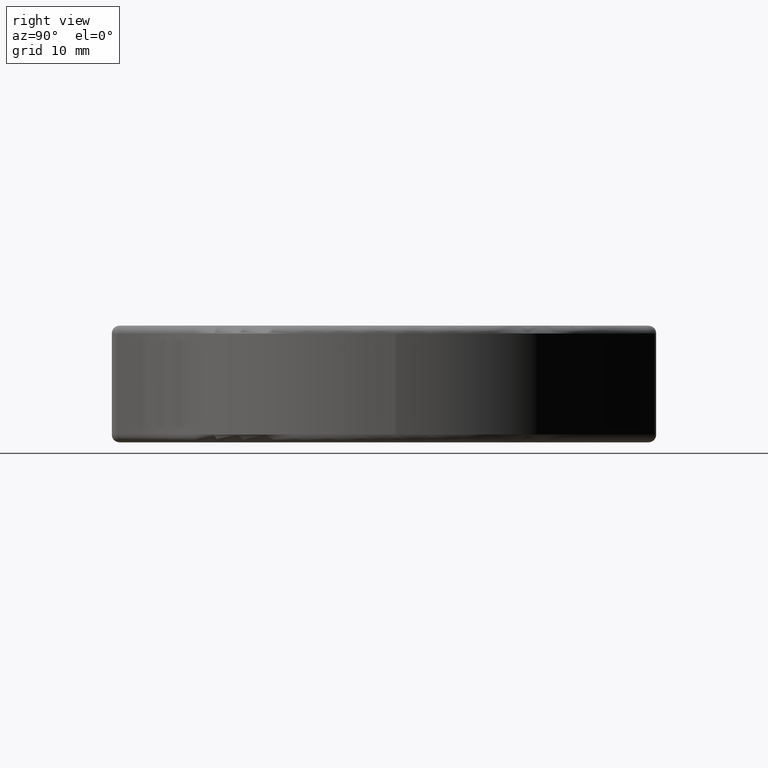
[diagram: clean part render]
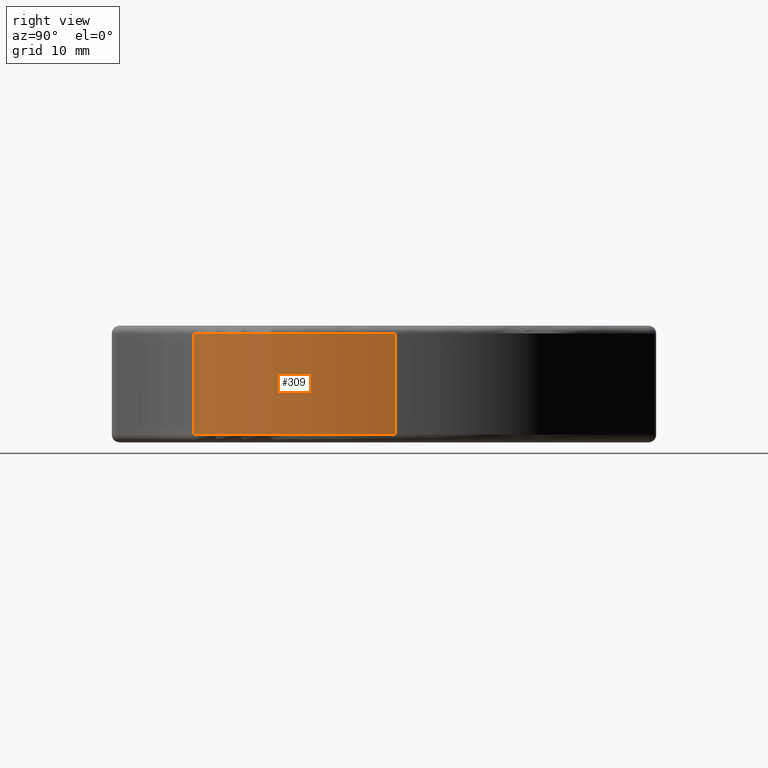
[diagram: same view with one face highlighted and labeled with its STEP entity id]
A machine part, right view. The second image highlights one B-rep face of the part: STEP entity #309.
In plain terms, the highlighted cylindrical surface (partial cylindrical patch) has radius 30.5 mm, axis along (-0, 0, 1).
Its self-contained STEP definition (entity closure, byte-faithful):
#32 = VERTEX_POINT ( 'NONE', #1661 ) ;
#192 = EDGE_CURVE ( 'NONE', #1574, #391, #2234, .T. ) ;
#299 = CARTESIAN_POINT ( 'NONE',  ( 30.50000000000000000, -2.370326157574709500E-014, -15.00000000000000000 ) ) ;
#309 = ADVANCED_FACE ( 'NONE', ( #733 ), #631, .T. ) ;
#391 = VERTEX_POINT ( 'NONE', #1611 ) ;
#462 = DIRECTION ( 'NONE',  ( -0.0000000000000000000, 0.0000000000000000000, 1.000000000000000000 ) ) ;
#543 = ORIENTED_EDGE ( 'NONE', *, *, #192, .T. ) ;
#631 = CYLINDRICAL_SURFACE ( 'NONE', #2221, 30.50000000000000000 ) ;
#668 = VECTOR ( 'NONE', #808, 1000.000000000000000 ) ;
#674 = DIRECTION ( 'NONE',  ( 1.000000000000000000, -7.771561172376096800E-016, 0.0000000000000000000 ) ) ;
#704 = AXIS2_PLACEMENT_3D ( 'NONE', #1709, #1362, #2043 ) ;
#716 = LINE ( 'NONE', #1473, #668 ) ;
#733 = FACE_OUTER_BOUND ( 'NONE', #1349, .T. ) ;
#808 = DIRECTION ( 'NONE',  ( -0.0000000000000000000, 0.0000000000000000000, 1.000000000000000000 ) ) ;
#924 = DIRECTION ( 'NONE',  ( -1.000000000000000000, 7.771561172376096800E-016, 0.0000000000000000000 ) ) ;
#1020 = AXIS2_PLACEMENT_3D ( 'NONE', #1272, #1252, #924 ) ;
#1064 = ORIENTED_EDGE ( 'NONE', *, *, #1354, .F. ) ;
#1252 = DIRECTION ( 'NONE',  ( 0.0000000000000000000, 0.0000000000000000000, -1.000000000000000000 ) ) ;
#1272 = CARTESIAN_POINT ( 'NONE',  ( 0.0000000000000000000, 0.0000000000000000000, -1.000000000000000900 ) ) ;
#1349 = EDGE_LOOP ( 'NONE', ( #543, #1760, #1549, #1064 ) ) ;
#1354 = EDGE_CURVE ( 'NONE', #1574, #1503, #716, .T. ) ;
#1362 = DIRECTION ( 'NONE',  ( -0.0000000000000000000, -0.0000000000000000000, 1.000000000000000000 ) ) ;
#1365 = CARTESIAN_POINT ( 'NONE',  ( 15.97298249955993800, -25.98295268187881400, -1.000000000000000900 ) ) ;
#1369 = CARTESIAN_POINT ( 'NONE',  ( 0.0000000000000000000, 0.0000000000000000000, -15.00000000000000000 ) ) ;
#1396 = DIRECTION ( 'NONE',  ( -0.0000000000000000000, 0.0000000000000000000, 1.000000000000000000 ) ) ;
#1473 = CARTESIAN_POINT ( 'NONE',  ( 15.97298249955993800, -25.98295268187881400, -15.00000000000000000 ) ) ;
#1503 = VERTEX_POINT ( 'NONE', #1365 ) ;
#1536 = LINE ( 'NONE', #299, #1638 ) ;
#1549 = ORIENTED_EDGE ( 'NONE', *, *, #1708, .T. ) ;
#1562 = CARTESIAN_POINT ( 'NONE',  ( 15.97298249955993800, -25.98295268187881400, -13.99999999999999800 ) ) ;
#1574 = VERTEX_POINT ( 'NONE', #1562 ) ;
#1611 = CARTESIAN_POINT ( 'NONE',  ( 30.50000000000000000, -2.370326157574709500E-014, -13.99999999999999800 ) ) ;
#1638 = VECTOR ( 'NONE', #462, 1000.000000000000000 ) ;
#1661 = CARTESIAN_POINT ( 'NONE',  ( 30.50000000000000000, -2.370326157574709500E-014, -1.000000000000000900 ) ) ;
#1708 = EDGE_CURVE ( 'NONE', #32, #1503, #2128, .T. ) ;
#1709 = CARTESIAN_POINT ( 'NONE',  ( 0.0000000000000000000, 0.0000000000000000000, -13.99999999999999800 ) ) ;
#1760 = ORIENTED_EDGE ( 'NONE', *, *, #1952, .T. ) ;
#1952 = EDGE_CURVE ( 'NONE', #391, #32, #1536, .T. ) ;
#2043 = DIRECTION ( 'NONE',  ( -1.000000000000000000, 2.553512956637860000E-015, 0.0000000000000000000 ) ) ;
#2128 = CIRCLE ( 'NONE', #1020, 30.50000000000000000 ) ;
#2221 = AXIS2_PLACEMENT_3D ( 'NONE', #1369, #1396, #674 ) ;
#2234 = CIRCLE ( 'NONE', #704, 30.50000000000000000 ) ;